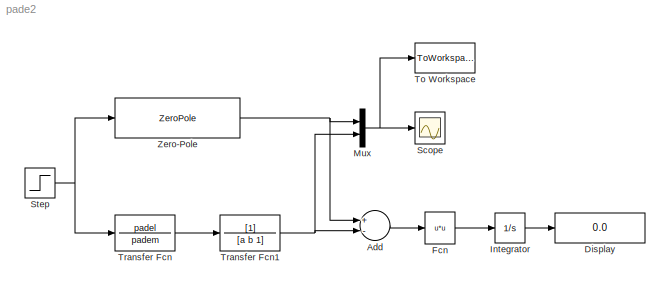
MODEL pade2
KIND model
BLOCK [Sum] Add
  InputSameDT = off
  Inputs = +-
  OutDataTypeStr = Inherit: Inherit via internal rule
  Ports = [2, 1]
  SID = 5
  SaturateOnIntegerOverflow = off
BLOCK [Display] Display
  Decimation = 1
  Lockdown = off
  Ports = [1]
  SID = 8
BLOCK [Fcn] Fcn
  Expr = u*u
  SID = 11
BLOCK [Integrator] Integrator
  Ports = [1, 1]
  SID = 9
BLOCK [Mux] Mux
  DisplayOption = bar
  Inputs = 2
  Ports = [2, 1]
  SID = 7
BLOCK [Scope] Scope
  DataFormat = StructureWithTime
  Floating = off
  NumInputPorts = 1
  Ports = [1]
  SID = 10
  SampleTime = 0
  ShowLegends = off
BLOCK [Step] Step
  SID = 1
  SampleTime = 0
  Time = 0
BLOCK [ToWorkspace] To Workspace
  MaxDataPoints = inf
  Ports = [1]
  SID = 12
  SampleTime = -1
  VariableName = pade2
BLOCK [TransferFcn] Transfer Fcn
  Denominator = padem
  Numerator = padel
  SID = 2
BLOCK [TransferFcn] Transfer Fcn1
  Denominator = [a b 1]
  SID = 6
BLOCK [ZeroPole] Zero-Pole
  Gain = 5^10
  Poles = linspace(-5,-5,10)
  SID = 3
  Zeros = []
LINE Add:1 -> Fcn:1
LINE Fcn:1 -> Integrator:1
LINE Integrator:1 -> Display:1
NET Mux:1 -> Scope:1, To Workspace:1
NET Step:1 -> Transfer Fcn:1, Zero-Pole:1
NET Transfer Fcn1:1 -> Add:2, Mux:2
LINE Transfer Fcn:1 -> Transfer Fcn1:1
NET Zero-Pole:1 -> Add:1, Mux:1
note: NET lines group one-source signal fan-out (src -> all destinations, sorted); 1:1 wires keep LINE
